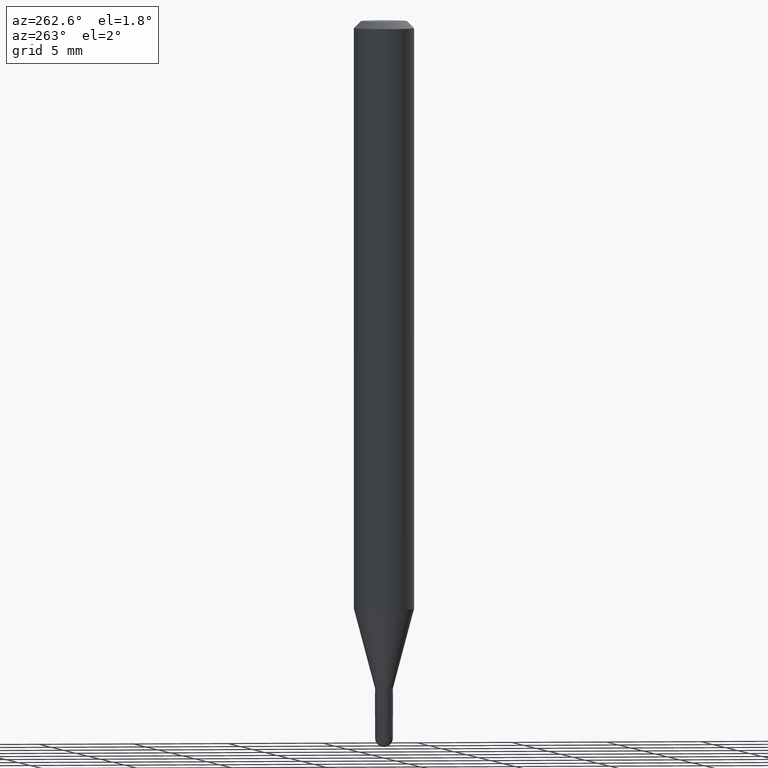
[diagram: clean part render]
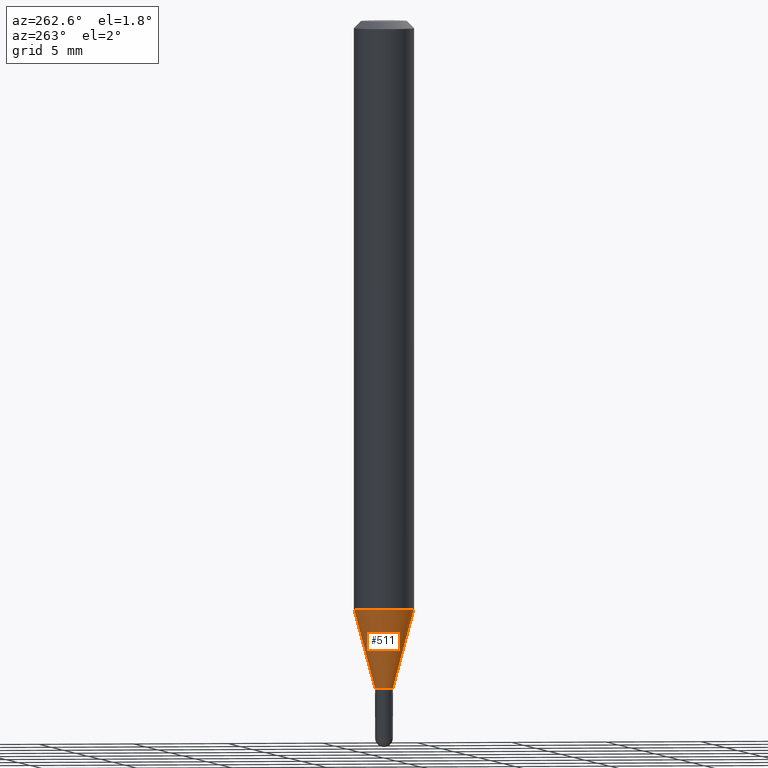
[diagram: same view with one face highlighted and labeled with its STEP entity id]
A machine part, auxiliary view. The second image highlights one B-rep face of the part: STEP entity #511.
In plain terms, the highlighted conical surface has half-angle 15 deg.
Its self-contained STEP definition (entity closure, byte-faithful):
#4 = CIRCLE ( 'NONE', #445, 0.01849999999999992276 ) ;
#55 = VECTOR ( 'NONE', #320, 39.37007874015748143 ) ;
#57 = ORIENTED_EDGE ( 'NONE', *, *, #456, .T. ) ;
#59 = DIRECTION ( 'NONE',  ( 1.839019923739601104E-15, 0.2588190451025250693, 0.9659258262890670910 ) ) ;
#64 = CARTESIAN_POINT ( 'NONE',  ( 2.877698079828721388E-16, 0.01849999999999510716, -1.379000000000000004 ) ) ;
#66 = CONICAL_SURFACE ( 'NONE', #361, 0.01849999999999992276, 0.2617993877991502960 ) ;
#69 = FACE_OUTER_BOUND ( 'NONE', #119, .T. ) ;
#94 = CARTESIAN_POINT ( 'NONE',  ( 1.314504061156517093E-16, 0.01849999999999510716, -1.379000000000000004 ) ) ;
#105 = DIRECTION ( 'NONE',  ( -6.982962677686265922E-15, -1.000000000000000000, 0.000000000000000000 ) ) ;
#113 = LINE ( 'NONE', #94, #166 ) ;
#119 = EDGE_LOOP ( 'NONE', ( #323, #57, #220, #396 ) ) ;
#132 = CARTESIAN_POINT ( 'NONE',  ( 2.970750059145847574E-29, -4.241387747752786622E-15, -1.214789764466969624 ) ) ;
#166 = VECTOR ( 'NONE', #59, 39.37007874015748143 ) ;
#169 = DIRECTION ( 'NONE',  ( -6.982962677686265922E-15, -1.000000000000000000, 4.370956789862821150E-15 ) ) ;
#220 = ORIENTED_EDGE ( 'NONE', *, *, #506, .T. ) ;
#238 = EDGE_CURVE ( 'NONE', #264, #334, #412, .T. ) ;
#246 = LINE ( 'NONE', #277, #55 ) ;
#264 = VERTEX_POINT ( 'NONE', #286 ) ;
#267 = DIRECTION ( 'NONE',  ( -2.445484927549883858E-29, 3.491458252131256494E-15, 1.000000000000000000 ) ) ;
#271 = EDGE_CURVE ( 'NONE', #338, #264, #113, .T. ) ;
#277 = CARTESIAN_POINT ( 'NONE',  ( -1.291848095371616572E-16, -0.01850000000000473835, -1.379000000000000004 ) ) ;
#286 = CARTESIAN_POINT ( 'NONE',  ( 4.440892098500921985E-16, 0.06249999999999573952, -1.214789764466969846 ) ) ;
#320 = DIRECTION ( 'NONE',  ( -1.807323732225330928E-15, -0.2588190451025182970, 0.9659258262890689783 ) ) ;
#323 = ORIENTED_EDGE ( 'NONE', *, *, #271, .F. ) ;
#326 = CARTESIAN_POINT ( 'NONE',  ( -1.291848095371616572E-16, -0.01850000000000473835, -1.379000000000000004 ) ) ;
#330 = DIRECTION ( 'NONE',  ( -2.445484927549883858E-29, 3.491458252131256494E-15, 1.000000000000000000 ) ) ;
#334 = VERTEX_POINT ( 'NONE', #411 ) ;
#338 = VERTEX_POINT ( 'NONE', #64 ) ;
#361 = AXIS2_PLACEMENT_3D ( 'NONE', #465, #267, #416 ) ;
#396 = ORIENTED_EDGE ( 'NONE', *, *, #238, .F. ) ;
#411 = CARTESIAN_POINT ( 'NONE',  ( -4.364351673553620871E-16, -0.06250000000000427436, -1.214789764466969402 ) ) ;
#412 = CIRCLE ( 'NONE', #453, 0.06250000000000000000 ) ;
#416 = DIRECTION ( 'NONE',  ( -6.982962677686265922E-15, -1.000000000000000000, 0.000000000000000000 ) ) ;
#429 = VERTEX_POINT ( 'NONE', #326 ) ;
#445 = AXIS2_PLACEMENT_3D ( 'NONE', #448, #330, #105 ) ;
#448 = CARTESIAN_POINT ( 'NONE',  ( 3.372323715091289390E-29, -4.814720929689002730E-15, -1.379000000000000004 ) ) ;
#453 = AXIS2_PLACEMENT_3D ( 'NONE', #132, #473, #169 ) ;
#456 = EDGE_CURVE ( 'NONE', #338, #429, #4, .T. ) ;
#465 = CARTESIAN_POINT ( 'NONE',  ( 3.372323715091289390E-29, -4.814720929689002730E-15, -1.379000000000000004 ) ) ;
#473 = DIRECTION ( 'NONE',  ( -2.445484927549883858E-29, 3.491458252131256494E-15, 1.000000000000000000 ) ) ;
#506 = EDGE_CURVE ( 'NONE', #429, #334, #246, .T. ) ;
#511 = ADVANCED_FACE ( 'NONE', ( #69 ), #66, .T. ) ;